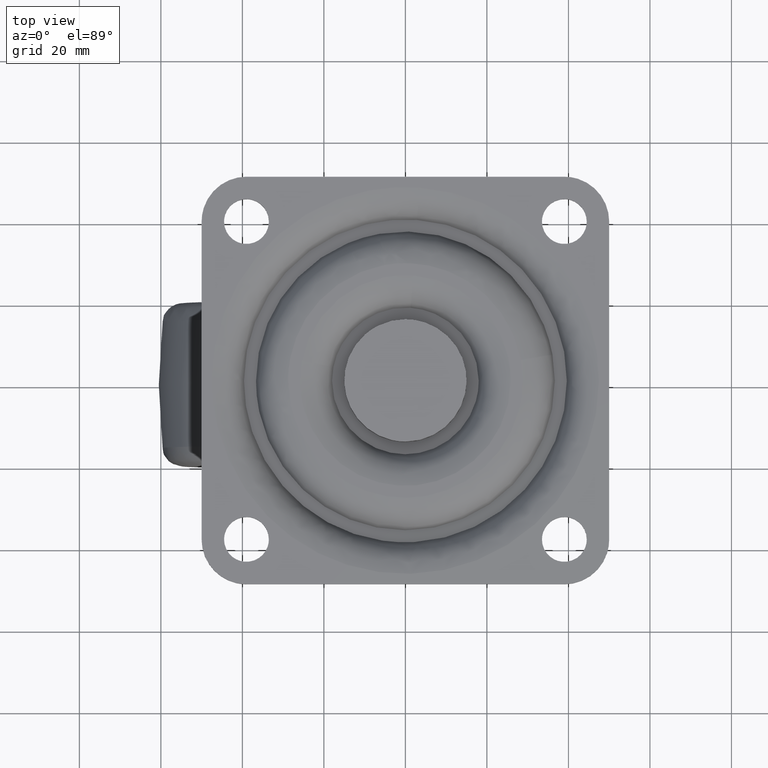
[diagram: clean part render]
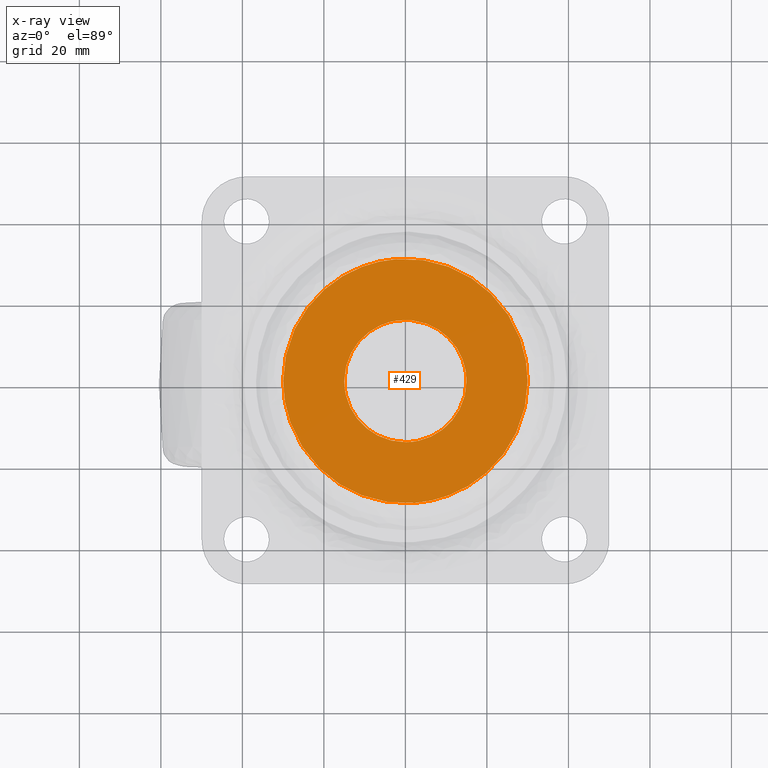
[diagram: x-ray — body ghosted, one internal face saturated and labeled with its STEP entity id]
A machine part, top view, then the same camera in x-ray: the body is ghosted and one INTERNAL B-rep face — a face not visible from any outside direction — is saturated and labeled: STEP entity #429.
In plain terms, the highlighted face is a freeform B-spline surface patch.
Its self-contained STEP definition (entity closure, byte-faithful):
#62=CARTESIAN_POINT('',(-14.999999499999999,1.136868E-013,-9.699999750000131));
#63=VERTEX_POINT('',#62);
#64=CARTESIAN_POINT('',(-1.861919531269425,14.883993207374189,-9.699999750000131));
#65=VERTEX_POINT('',#64);
#66=CARTESIAN_POINT('',(-14.999999499999999,1.136868E-013,-9.699999750000131));
#67=CARTESIAN_POINT('',(-14.999999500000001,13.240479002124481,-9.699999750000133));
#68=CARTESIAN_POINT('',(-1.861919531269425,14.883993207374191,-9.699999750000131));
#76=(BOUNDED_CURVE()B_SPLINE_CURVE(2,(#66,#67,#68),.UNSPECIFIED.,.F.,.U.)B_SPLINE_CURVE_WITH_KNOTS((3,3),(0.0,0.228526071027668),.UNSPECIFIED.)CURVE()GEOMETRIC_REPRESENTATION_ITEM()RATIONAL_B_SPLINE_CURVE((1.0,0.732265053895659,0.954005430271553))REPRESENTATION_ITEM(''));
#77=EDGE_CURVE('',#63,#65,#76,.T.);
#79=CARTESIAN_POINT('',(0.130883602403604,-14.999428976240351,-9.699999749999472));
#80=VERTEX_POINT('',#79);
#81=CARTESIAN_POINT('',(0.130883602403604,-14.999428976240353,-9.699999749999472));
#82=CARTESIAN_POINT('',(0.065443296848214,-14.999999999999885,-9.699999750000131));
#83=CARTESIAN_POINT('',(0.000000499999999,-14.999999999999890,-9.699999750000131));
#84=CARTESIAN_POINT('',(-14.999999499999999,-14.999999999999885,-9.699999750000131));
#85=CARTESIAN_POINT('',(-14.999999499999999,1.136868E-013,-9.699999750000131));
#93=(BOUNDED_CURVE()B_SPLINE_CURVE(2,(#81,#82,#83,#84,#85),.UNSPECIFIED.,.F.,.U.)B_SPLINE_CURVE_WITH_KNOTS((3,2,3),(0.748460280993348,0.750000000000000,1.0),.UNSPECIFIED.)CURVE()GEOMETRIC_REPRESENTATION_ITEM()RATIONAL_B_SPLINE_CURVE((0.996414433859584,0.998196106976294,1.0,0.707106781186547,1.0))REPRESENTATION_ITEM(''));
#94=EDGE_CURVE('',#80,#63,#93,.T.);
#165=CARTESIAN_POINT('',(15.000000500000001,1.136868E-013,-9.699999750000131));
#166=VERTEX_POINT('',#165);
#167=CARTESIAN_POINT('',(-1.861919531269425,14.883993207374184,-9.699999750000131));
#168=CARTESIAN_POINT('',(-0.934573413075244,15.000000000000119,-9.699999750000131));
#169=CARTESIAN_POINT('',(0.000000499999999,15.000000000000110,-9.699999750000131));
#170=CARTESIAN_POINT('',(15.000000499999997,15.000000000000110,-9.699999750000131));
#171=CARTESIAN_POINT('',(15.000000500000001,1.136868E-013,-9.699999750000131));
#179=(BOUNDED_CURVE()B_SPLINE_CURVE(2,(#167,#168,#169,#170,#171),.UNSPECIFIED.,.F.,.U.)B_SPLINE_CURVE_WITH_KNOTS((3,2,3),(0.228526071027668,0.250000000000000,0.500000000000000),.UNSPECIFIED.)CURVE()GEOMETRIC_REPRESENTATION_ITEM()RATIONAL_B_SPLINE_CURVE((0.954005430271553,0.974841727290888,1.0,0.707106781186547,1.0))REPRESENTATION_ITEM(''));
#180=EDGE_CURVE('',#65,#166,#179,.T.);
#214=CARTESIAN_POINT('',(15.000000500000001,1.136868E-013,-9.699999750000131));
#215=CARTESIAN_POINT('',(15.000000499999995,-14.869682960406649,-9.699999750000130));
#216=CARTESIAN_POINT('',(0.130883602403604,-14.999428976240353,-9.699999749999472));
#224=(BOUNDED_CURVE()B_SPLINE_CURVE(2,(#214,#215,#216),.UNSPECIFIED.,.F.,.U.)B_SPLINE_CURVE_WITH_KNOTS((3,3),(0.500000000000000,0.748460280993348),.UNSPECIFIED.)CURVE()GEOMETRIC_REPRESENTATION_ITEM()RATIONAL_B_SPLINE_CURVE((1.0,0.708910674210254,0.996414433859584))REPRESENTATION_ITEM(''));
#225=EDGE_CURVE('',#166,#80,#224,.T.);
#248=CARTESIAN_POINT('',(-29.999997999999849,8.385833E-016,-9.699999500000102));
#249=VERTEX_POINT('',#248);
#250=CARTESIAN_POINT('',(-2.353772714930119,29.907518018158669,-9.699999499997826));
#251=VERTEX_POINT('',#250);
#252=CARTESIAN_POINT('',(-29.999997999999849,8.385833E-016,-9.699999500000102));
#253=CARTESIAN_POINT('',(-29.999997999999852,27.731712900941091,-9.699999500000102));
#254=CARTESIAN_POINT('',(-2.353772714930120,29.907518018158662,-9.699999499997826));
#262=(BOUNDED_CURVE()B_SPLINE_CURVE(2,(#252,#253,#254),.UNSPECIFIED.,.F.,.U.)B_SPLINE_CURVE_WITH_KNOTS((3,3),(0.0,0.236331300632619),.UNSPECIFIED.)CURVE()GEOMETRIC_REPRESENTATION_ITEM()RATIONAL_B_SPLINE_CURVE((1.0,0.723120658605370,0.969723356171507))REPRESENTATION_ITEM(''));
#263=EDGE_CURVE('',#249,#251,#262,.T.);
#304=CARTESIAN_POINT('',(2.353772714930119,-29.907518018158669,-9.699999499997826));
#305=VERTEX_POINT('',#304);
#311=CARTESIAN_POINT('',(2.353772714930119,-29.907518018158669,-9.699999499997826));
#312=CARTESIAN_POINT('',(1.178703131662842,-29.999997999999852,-9.699999500000102));
#313=CARTESIAN_POINT('',(0.0,-29.999997999999849,-9.699999500000102));
#314=CARTESIAN_POINT('',(-29.999997999999852,-29.999997999999852,-9.699999500000102));
#315=CARTESIAN_POINT('',(-29.999997999999849,8.385833E-016,-9.699999500000102));
#323=(BOUNDED_CURVE()B_SPLINE_CURVE(2,(#311,#312,#313,#314,#315),.UNSPECIFIED.,.F.,.U.)B_SPLINE_CURVE_WITH_KNOTS((3,2,3),(0.736331300632619,0.750000000000000,1.0),.UNSPECIFIED.)CURVE()GEOMETRIC_REPRESENTATION_ITEM()RATIONAL_B_SPLINE_CURVE((0.969723356171507,0.983986122581177,1.0,0.707106781186548,1.0))REPRESENTATION_ITEM(''));
#324=EDGE_CURVE('',#305,#249,#323,.T.);
#347=CARTESIAN_POINT('',(29.999997999999849,8.385833E-016,-9.699999500000102));
#348=VERTEX_POINT('',#347);
#349=CARTESIAN_POINT('',(-2.353772714930119,29.907518018158669,-9.699999499997826));
#350=CARTESIAN_POINT('',(-1.178703131662842,29.999997999999852,-9.699999500000102));
#351=CARTESIAN_POINT('',(0.0,29.999997999999849,-9.699999500000102));
#352=CARTESIAN_POINT('',(29.999997999999852,29.999997999999852,-9.699999500000102));
#353=CARTESIAN_POINT('',(29.999997999999849,8.385833E-016,-9.699999500000102));
#361=(BOUNDED_CURVE()B_SPLINE_CURVE(2,(#349,#350,#351,#352,#353),.UNSPECIFIED.,.F.,.U.)B_SPLINE_CURVE_WITH_KNOTS((3,2,3),(0.236331300632619,0.250000000000000,0.500000000000000),.UNSPECIFIED.)CURVE()GEOMETRIC_REPRESENTATION_ITEM()RATIONAL_B_SPLINE_CURVE((0.969723356171507,0.983986122581177,1.0,0.707106781186548,1.0))REPRESENTATION_ITEM(''));
#362=EDGE_CURVE('',#251,#348,#361,.T.);
#364=CARTESIAN_POINT('',(29.999997999999849,8.385833E-016,-9.699999500000102));
#365=CARTESIAN_POINT('',(29.999997999999852,-27.731712900941172,-9.699999500000100));
#366=CARTESIAN_POINT('',(2.353772714930119,-29.907518018158669,-9.699999499997826));
#374=(BOUNDED_CURVE()B_SPLINE_CURVE(2,(#364,#365,#366),.UNSPECIFIED.,.F.,.U.)B_SPLINE_CURVE_WITH_KNOTS((3,3),(0.500000000000000,0.736331300632620),.UNSPECIFIED.)CURVE()GEOMETRIC_REPRESENTATION_ITEM()RATIONAL_B_SPLINE_CURVE((1.0,0.723120658605369,0.969723356171508))REPRESENTATION_ITEM(''));
#375=EDGE_CURVE('',#348,#305,#374,.T.);
#412=CARTESIAN_POINT('',(32.996998247145228,-32.987840945852852,-9.699999750000101));
#413=CARTESIAN_POINT('',(-32.996999320028770,-32.987840945852852,-9.699999750000101));
#414=CARTESIAN_POINT('',(32.996998247145228,32.987842018736401,-9.699999750000101));
#415=CARTESIAN_POINT('',(-32.996999320028770,32.987842018736401,-9.699999750000101));
#416=B_SPLINE_SURFACE_WITH_KNOTS('',1,1,((#412,#414),(#413,#415)),.UNSPECIFIED.,.F.,.F.,.U.,(2,2),(2,2),(0.0,65.993997567174006),(0.0,65.975682964589254),.UNSPECIFIED.);
#417=ORIENTED_EDGE('',*,*,#324,.F.);
#418=ORIENTED_EDGE('',*,*,#375,.F.);
#419=ORIENTED_EDGE('',*,*,#362,.F.);
#420=ORIENTED_EDGE('',*,*,#263,.F.);
#421=EDGE_LOOP('',(#417,#418,#419,#420));
#422=FACE_OUTER_BOUND('',#421,.T.);
#423=ORIENTED_EDGE('',*,*,#225,.T.);
#424=ORIENTED_EDGE('',*,*,#94,.T.);
#425=ORIENTED_EDGE('',*,*,#77,.T.);
#426=ORIENTED_EDGE('',*,*,#180,.T.);
#427=EDGE_LOOP('',(#423,#424,#425,#426));
#428=FACE_BOUND('',#427,.T.);
#429=ADVANCED_FACE('',(#422,#428),#416,.F.);